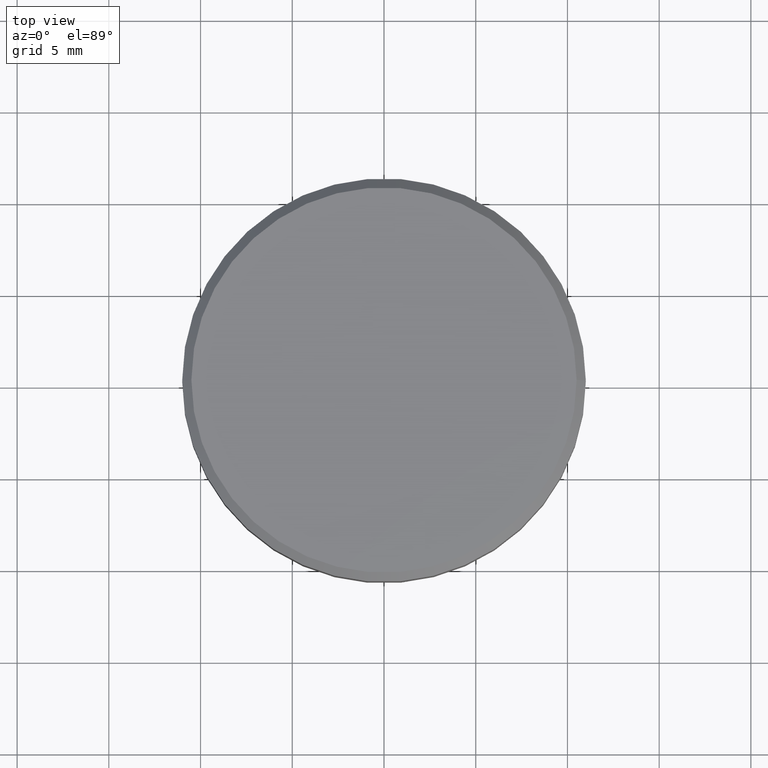
[diagram: clean part render]
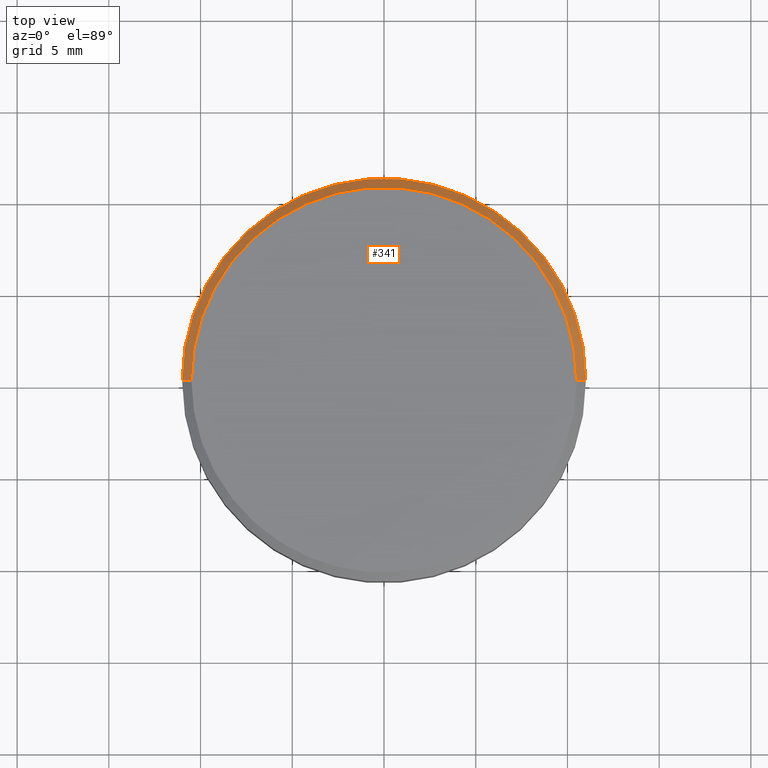
[diagram: same view with one face highlighted and labeled with its STEP entity id]
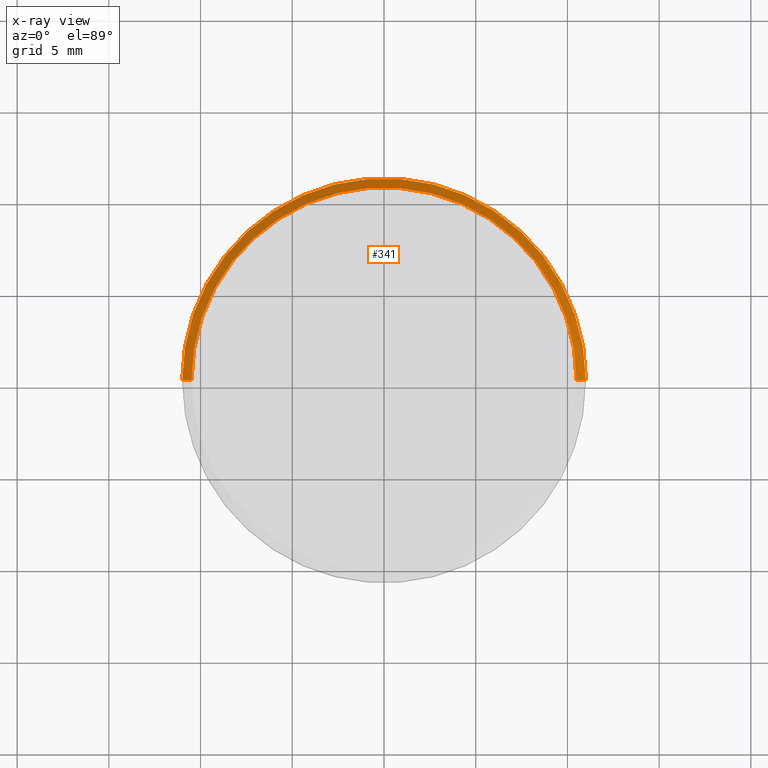
[diagram: x-ray of the same camera — body ghosted, the highlighted face saturated]
A machine part, top view. The second image highlights one B-rep face of the part: STEP entity #341.
The next image is the same camera in x-ray: the body ghosted, the highlighted face saturated — about 0% of this face is hidden behind the body in this view.
In plain terms, the highlighted conical surface has half-angle 45 deg.
Its self-contained STEP definition (entity closure, byte-faithful):
#5 = DIRECTION ( 'NONE',  ( 0.000000000000000000, 0.000000000000000000, -1.000000000000000000 ) ) ;
#7 = EDGE_CURVE ( 'NONE', #39, #184, #30, .T. ) ;
#19 = EDGE_CURVE ( 'NONE', #398, #39, #117, .T. ) ;
#21 = VERTEX_POINT ( 'NONE', #390 ) ;
#30 = LINE ( 'NONE', #252, #153 ) ;
#37 = CARTESIAN_POINT ( 'NONE',  ( 0.000000000000000000, 0.000000000000000000, -0.4999999999999882871 ) ) ;
#39 = VERTEX_POINT ( 'NONE', #393 ) ;
#70 = EDGE_CURVE ( 'NONE', #398, #21, #310, .T. ) ;
#71 = EDGE_LOOP ( 'NONE', ( #127, #217, #376, #100 ) ) ;
#82 = DIRECTION ( 'NONE',  ( -1.000000000000000000, 0.000000000000000000, 0.000000000000000000 ) ) ;
#86 = VECTOR ( 'NONE', #121, 1000.000000000000114 ) ;
#100 = ORIENTED_EDGE ( 'NONE', *, *, #7, .F. ) ;
#117 = CIRCLE ( 'NONE', #377, 10.50000000000001243 ) ;
#121 = DIRECTION ( 'NONE',  ( 0.7071067811865474617, 8.659560562354932858E-17, -0.7071067811865474617 ) ) ;
#127 = ORIENTED_EDGE ( 'NONE', *, *, #19, .F. ) ;
#130 = CIRCLE ( 'NONE', #296, 11.00000000000000178 ) ;
#149 = CARTESIAN_POINT ( 'NONE',  ( 10.50000000000001243, 1.285879139104722408E-15, 0.000000000000000000 ) ) ;
#153 = VECTOR ( 'NONE', #379, 1000.000000000000114 ) ;
#159 = CARTESIAN_POINT ( 'NONE',  ( -11.00000000000000178, 1.347111479062088602E-15, -0.4999999999999882871 ) ) ;
#184 = VERTEX_POINT ( 'NONE', #159 ) ;
#209 = DIRECTION ( 'NONE',  ( 0.000000000000000000, 0.000000000000000000, -1.000000000000000000 ) ) ;
#217 = ORIENTED_EDGE ( 'NONE', *, *, #70, .T. ) ;
#252 = CARTESIAN_POINT ( 'NONE',  ( -10.50000000000001243, 0.000000000000000000, 0.000000000000000000 ) ) ;
#265 = DIRECTION ( 'NONE',  ( 1.000000000000000000, 0.000000000000000000, 0.000000000000000000 ) ) ;
#267 = DIRECTION ( 'NONE',  ( -0.000000000000000000, -0.000000000000000000, 1.000000000000000000 ) ) ;
#294 = CARTESIAN_POINT ( 'NONE',  ( 0.000000000000000000, 0.000000000000000000, 0.000000000000000000 ) ) ;
#296 = AXIS2_PLACEMENT_3D ( 'NONE', #37, #5, #326 ) ;
#310 = LINE ( 'NONE', #149, #86 ) ;
#318 = EDGE_CURVE ( 'NONE', #184, #21, #130, .T. ) ;
#326 = DIRECTION ( 'NONE',  ( 1.000000000000000000, 0.000000000000000000, 0.000000000000000000 ) ) ;
#331 = AXIS2_PLACEMENT_3D ( 'NONE', #358, #209, #82 ) ;
#341 = ADVANCED_FACE ( 'NONE', ( #389 ), #402, .T. ) ;
#358 = CARTESIAN_POINT ( 'NONE',  ( 0.000000000000000000, 0.000000000000000000, 0.000000000000000000 ) ) ;
#371 = CARTESIAN_POINT ( 'NONE',  ( 10.50000000000001243, 1.316495309083405604E-15, 0.000000000000000000 ) ) ;
#376 = ORIENTED_EDGE ( 'NONE', *, *, #318, .F. ) ;
#377 = AXIS2_PLACEMENT_3D ( 'NONE', #294, #267, #265 ) ;
#379 = DIRECTION ( 'NONE',  ( -0.7071067811865474617, 0.000000000000000000, -0.7071067811865474617 ) ) ;
#389 = FACE_OUTER_BOUND ( 'NONE', #71, .T. ) ;
#390 = CARTESIAN_POINT ( 'NONE',  ( 11.00000000000000178, 0.000000000000000000, -0.4999999999999882871 ) ) ;
#393 = CARTESIAN_POINT ( 'NONE',  ( -10.50000000000001243, 0.000000000000000000, 0.000000000000000000 ) ) ;
#398 = VERTEX_POINT ( 'NONE', #371 ) ;
#402 = CONICAL_SURFACE ( 'NONE', #331, 10.50000000000001243, 0.7853981633974482790 ) ;